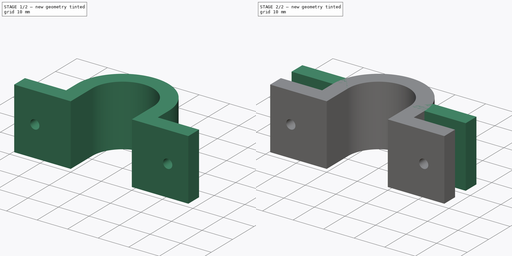
[diagram: build sequence overview — one tinted view per stage of 2, left to right]
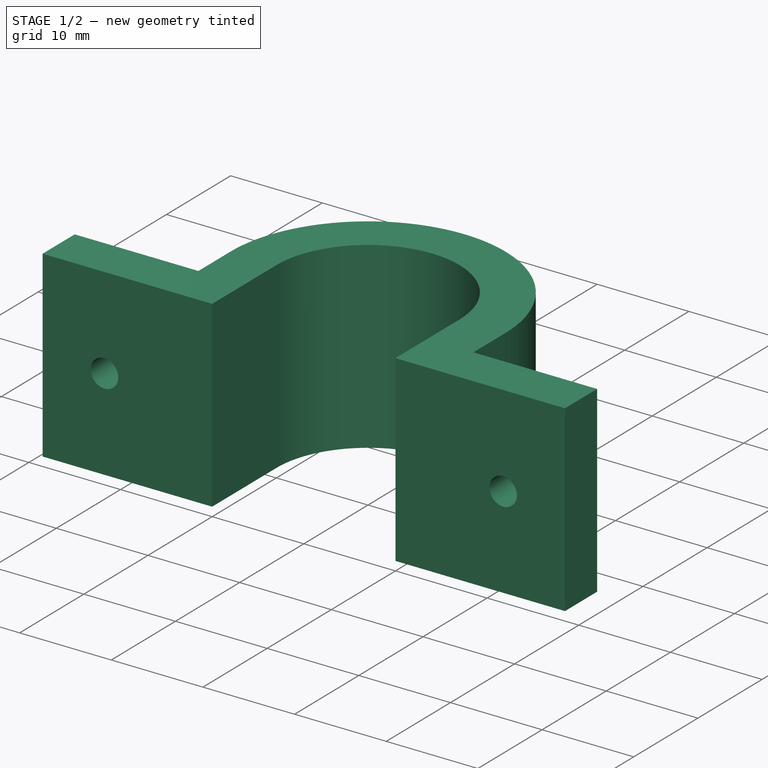
[diagram: stage 1 of 2 — iso view after this stage's code; geometry added in this stage tinted green]
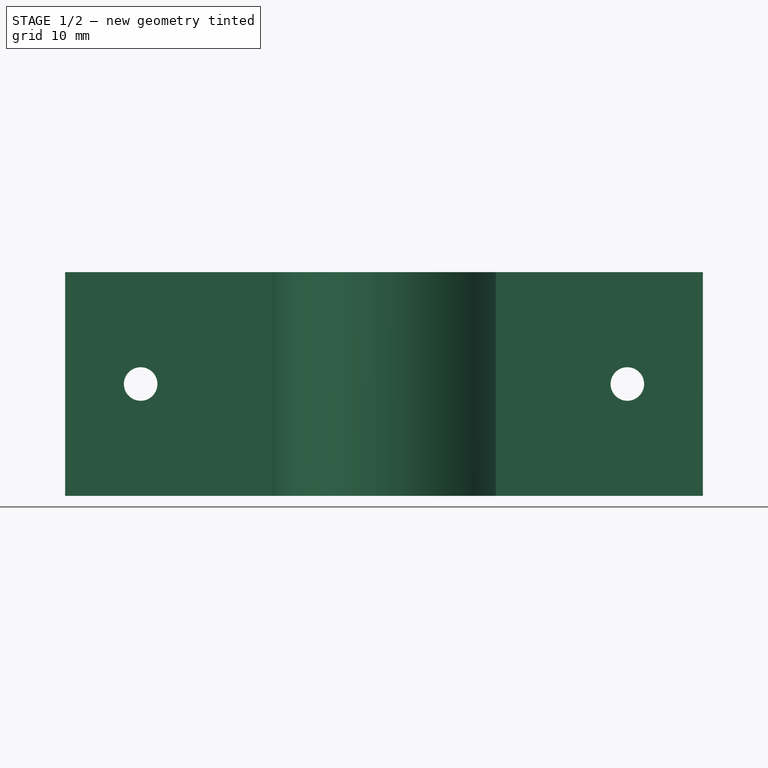
[diagram: stage 1 of 2 — front view after this stage's code; geometry added in this stage tinted green]
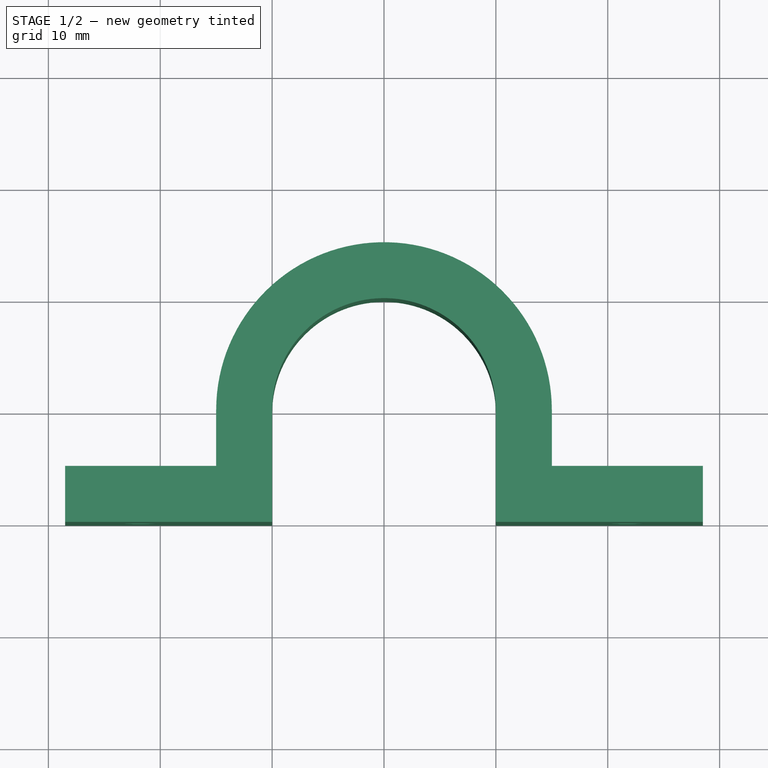
[diagram: stage 1 of 2 — top view after this stage's code; geometry added in this stage tinted green]
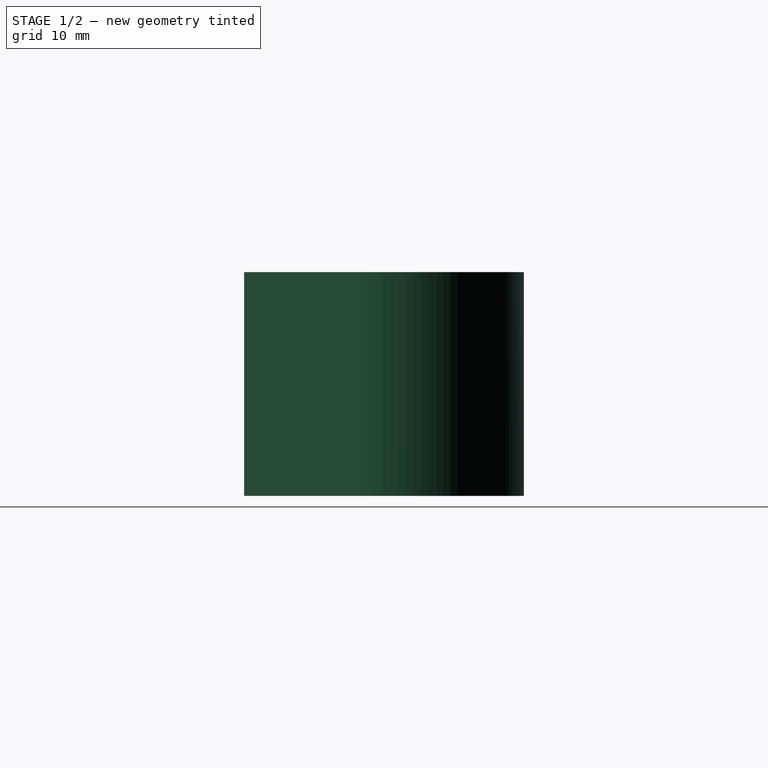
[diagram: stage 1 of 2 — right view after this stage's code; geometry added in this stage tinted green]
FCSTD DOCUMENT  (FreeCAD 2024.2R37179 (Git))
Label: 20mm
License: All rights reserved
LicenseURL: https://en.wikipedia.org/wiki/All_rights_reserved
objects: Sketcher::SketchObject×5, PartDesign::Pad×2, PartDesign::Pocket×2, PartDesign::Body×2
note: 15 computed .brp shape members not serialized (recipe doc carries the construction recipe); baked Part::Feature solids carry a one-line shape summary decoded from their .brp

FEATURE [PartDesign::Body] Body
  Group = -> [Sketch,Pad,Sketch001,Pocket]
  Origin = -> Origin
  Tip = -> Pocket
FEATURE [Sketcher::SketchObject] Sketch002
  AttachmentSupport = -> [XY_Plane001]
  FullyConstrained = false
  MapMode = 5
  sketch-geometry (13):
    g0: ArcOfCircle CenterX=0 CenterY=0 CenterZ=0 NormalX=0 NormalY=0 NormalZ=1 AngleXU=0 Radius=15 StartAngle=0 EndAngle=3.14159
    g1: GeomPoint X=0 Y=-10 Z=0
    g2: LineSegment StartX=-28.5 StartY=-10 StartZ=0 EndX=-10 EndY=-10 EndZ=0
    g3: LineSegment StartX=28.5 StartY=-10 StartZ=0 EndX=10 EndY=-10 EndZ=0
    g4: ArcOfCircle CenterX=0 CenterY=0 CenterZ=0 NormalX=0 NormalY=0 NormalZ=1 AngleXU=0 Radius=10 StartAngle=0 EndAngle=3.14159
    g5: LineSegment StartX=-10 StartY=0 StartZ=0 EndX=-10 EndY=-10 EndZ=0
    g6: LineSegment StartX=10 StartY=0 StartZ=0 EndX=10 EndY=-10 EndZ=0
    g7: LineSegment StartX=-28.5 StartY=-10 StartZ=0 EndX=-28.5 EndY=-5 EndZ=0
    g8: LineSegment StartX=-28.5 StartY=-5 StartZ=0 EndX=-15 EndY=-5 EndZ=0
    g9: LineSegment StartX=-15 StartY=-5 StartZ=0 EndX=-15 EndY=0 EndZ=0
    g10: LineSegment StartX=15 StartY=0 StartZ=0 EndX=15 EndY=-5 EndZ=0
    g11: LineSegment StartX=15 StartY=-5 StartZ=0 EndX=28.5 EndY=-5 EndZ=0
    g12: LineSegment StartX=28.5 StartY=-5 StartZ=0 EndX=28.5 EndY=-10 EndZ=0
  constraints (33):
    c: Diameter(g0) = 30
    c: DistanceX(g2,g3) = 57
    c: Horizontal(g2)
    c: Horizontal(g3)
    c: Coincident(g4,g0)
    c: PointOnObject(g4,g-1)
    c: PointOnObject(g4,g-1)
    c: Diameter(g4) = 20
    c: Tangent(g4,g5) = -1.5708
    c: Tangent(g4,g6) = 1.5708
    c: Coincident(g3,g6)
    c: Coincident(g2,g5)
    c: Coincident(g0,g-1)
    c: DistanceY(g3,g0) = 10
    c: Coincident(g2,g7)
    c: Vertical(g7)
    c: Coincident(g7,g8)
    c: Horizontal(g8)
    c: Coincident(g8,g9)
    c: Coincident(g9,g0)
    c: Vertical(g9)
    c: Tangent(g0,g10) = 1.5708
    c: Coincident(g10,g11)
    c: Horizontal(g11)
    c: Coincident(g11,g12)
    c: Coincident(g12,g3)
    c: Vertical(g12)
    c: Horizontal(g4,g0)
    c: Horizontal(g0,g4)
    c: DistanceY(g7,g7) = 5
    c: Equal(g7,g12)
    c: Equal(g8,g11)
    c: Horizontal(g2,g3)
FEATURE [PartDesign::Pad] Pad001
  Direction = (0,0,1)
  Length = 20
  Length2 = 10
  Profile = -> Sketch002
  ReferenceAxis = -> Sketch002 [N_Axis]
  Refine = true
  Suppressed = false
  Type = 0
FEATURE [Sketcher::SketchObject] Sketch003
  AttachmentSupport = -> [Pad001]
  ExternalGeometry = -> [Pad001]
  FullyConstrained = true
  MapMode = 5
  Placement = pos=(-28.5,0,0) rot=(0.57735,-0.57735,-0.57735;2.0944rad)
  sketch-geometry (2):
    g0: Circle CenterX=2.5 CenterY=10 CenterZ=0 NormalX=0 NormalY=0 NormalZ=1 AngleXU=0 Radius=1.5
    g1: Circle CenterX=7.5 CenterY=10 CenterZ=0 NormalX=0 NormalY=0 NormalZ=1 AngleXU=0 Radius=1.5
  constraints (4):
    c: Equal(g0,g1)
    c: Symmetric(g-3,g-4,g0)
    c: Symmetric(g-5,g-6,g1)
    c: Diameter(g1) = 3
FEATURE [Sketcher::SketchObject] Sketch004
  AttachmentSupport = -> [Pad001]
  ExternalGeometry = -> [Pad001]
  FullyConstrained = true
  MapMode = 5
  Placement = pos=(0,-5,0) rot=(0,0.707107,0.707107;3.14159rad)
  sketch-geometry (2):
    g0: Circle CenterX=-21.75 CenterY=10 CenterZ=0 NormalX=0 NormalY=0 NormalZ=1 AngleXU=0 Radius=1.5
    g1: Circle CenterX=21.75 CenterY=10 CenterZ=0 NormalX=0 NormalY=0 NormalZ=1 AngleXU=0 Radius=1.5
  constraints (4):
    c: Equal(g0,g1)
    c: Symmetric(g-3,g-4,g0)
    c: Symmetric(g-5,g-6,g1)
    c: Diameter(g0) = 3
FEATURE [PartDesign::Pocket] Pocket001
  BaseFeature = -> Pad001
  Direction = (0,-1,2e-16)
  Length = 5
  Length2 = 5
  Profile = -> Sketch004
  ReferenceAxis = -> Sketch004 [N_Axis]
  Refine = true
  Suppressed = false
  Type = 1
FEATURE [PartDesign::Body] Body001
  Group = -> [Sketch002,Pad001,Sketch003,Sketch004,Pocket001]
  Origin = -> Origin001
  Tip = -> Pocket001
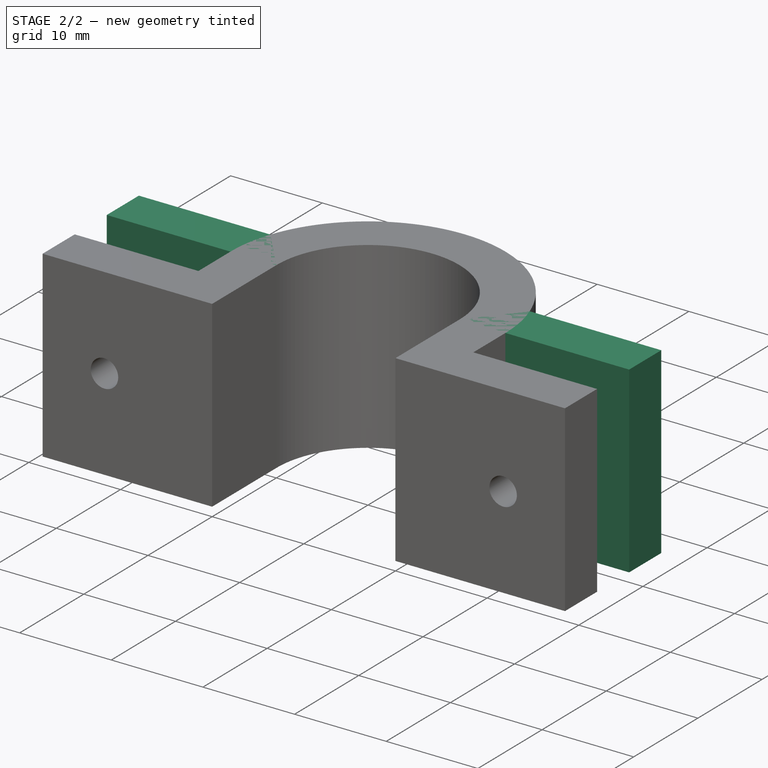
[diagram: stage 2 of 2 — iso view after this stage's code; geometry added in this stage tinted green]
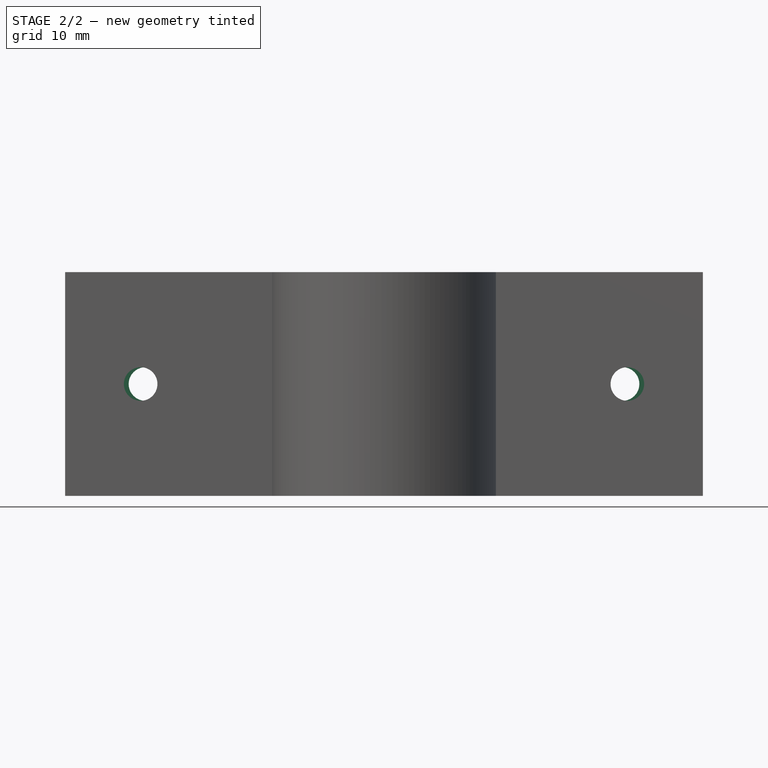
[diagram: stage 2 of 2 — front view after this stage's code; geometry added in this stage tinted green]
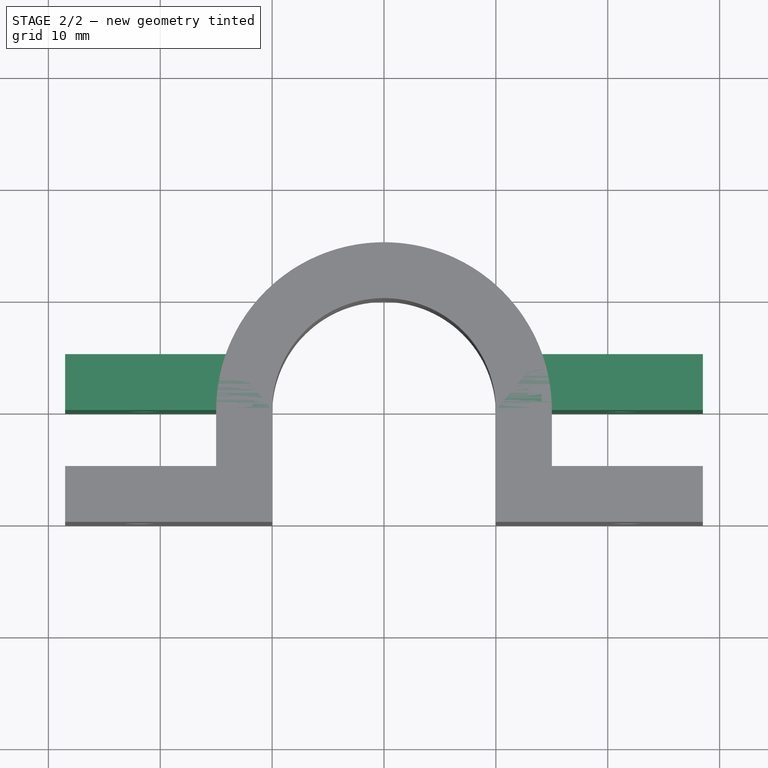
[diagram: stage 2 of 2 — top view after this stage's code; geometry added in this stage tinted green]
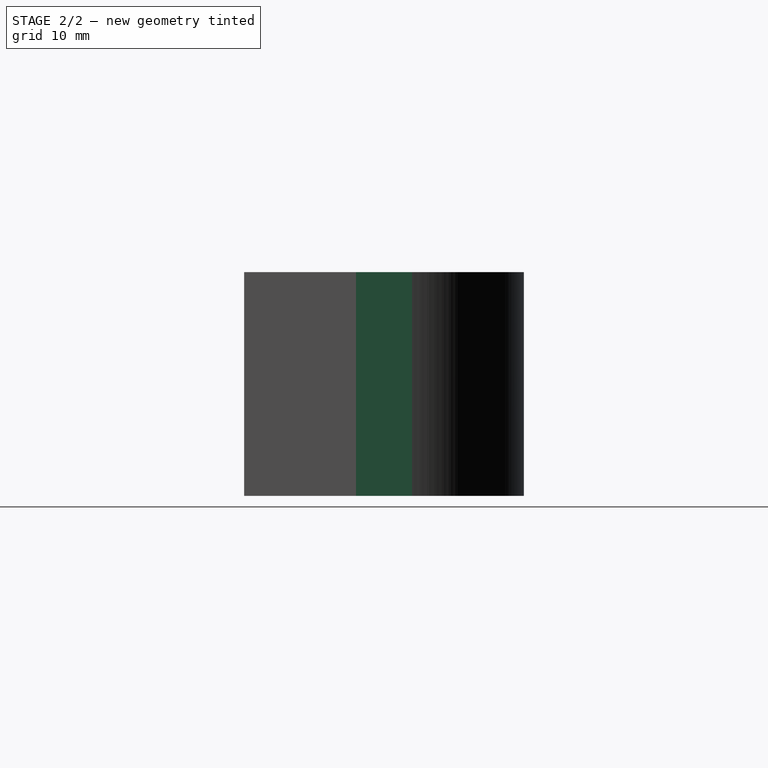
[diagram: stage 2 of 2 — right view after this stage's code; geometry added in this stage tinted green]
FEATURE [Sketcher::SketchObject] Sketch
  AttachmentSupport = -> [XY_Plane]
  FullyConstrained = true
  MapMode = 5
  sketch-geometry (8):
    g0: LineSegment StartX=28.5 StartY=1.9e-15 StartZ=0 EndX=10 EndY=1.9e-15 EndZ=0
    g1: LineSegment StartX=-28.5 StartY=1.2e-15 StartZ=0 EndX=-10 EndY=1.2e-15 EndZ=0
    g2: ArcOfCircle CenterX=0 CenterY=1.2e-15 CenterZ=0 NormalX=0 NormalY=0 NormalZ=1 AngleXU=0 Radius=10 StartAngle=1e-16 EndAngle=3.14159
    g3: LineSegment StartX=-28.5 StartY=1.2e-15 StartZ=0 EndX=-28.5 EndY=5 EndZ=0
    g4: LineSegment StartX=-28.5 StartY=5 StartZ=0 EndX=-14.1421 EndY=5 EndZ=0
    g5: LineSegment StartX=28.5 StartY=1.9e-15 StartZ=0 EndX=28.5 EndY=5 EndZ=0
    g6: LineSegment StartX=28.5 StartY=5 StartZ=0 EndX=14.1421 EndY=5 EndZ=0
    g7: ArcOfCircle CenterX=0 CenterY=1.2e-15 CenterZ=0 NormalX=0 NormalY=0 NormalZ=1 AngleXU=0 Radius=15 StartAngle=0.339837 EndAngle=2.80176
  constraints (24):
    c: Horizontal(g0)
    c: Horizontal(g1)
    c: Coincident(g2,g1)
    c: Coincident(g2,g0)
    c: Diameter(g2) = 20
    c: Equal(g1,g0)
    c: Horizontal(g1,g2)
    c: Coincident(g1,g3)
    c: Coincident(g3,g4)
    c: Horizontal(g4)
    c: Coincident(g0,g5)
    c: Coincident(g5,g6)
    c: Equal(g6,g4)
    c: Equal(g3,g5)
    c: Vertical(g5)
    c: Vertical(g3)
    c: Horizontal(g6)
    c: Coincident(g2,g-1)
    c: Coincident(g7,g4)
    c: Coincident(g7,g6)
    c: Coincident(g7,g2)
    c: Diameter(g7) = 30
    c: DistanceY(g5,g5) = 5
    c: DistanceX(g1,g0) = 57
FEATURE [PartDesign::Pad] Pad
  Direction = (0,0,1)
  Length = 20
  Length2 = 10
  Profile = -> Sketch
  ReferenceAxis = -> Sketch [N_Axis]
  Refine = true
  Suppressed = false
  Type = 0
FEATURE [Sketcher::SketchObject] Sketch001
  AttachmentSupport = -> [Pad]
  ExternalGeometry = -> [Pad]
  FullyConstrained = true
  MapMode = 5
  Placement = pos=(0,5,0) rot=(0,0.707107,0.707107;3.14159rad)
  sketch-geometry (2):
    g0: Circle CenterX=-21.3211 CenterY=10 CenterZ=0 NormalX=0 NormalY=0 NormalZ=1 AngleXU=0 Radius=1.5
    g1: Circle CenterX=21.3211 CenterY=10 CenterZ=0 NormalX=0 NormalY=0 NormalZ=1 AngleXU=0 Radius=1.5
  constraints (4):
    c: Equal(g0,g1)
    c: Diameter(g1) = 3
    c: Symmetric(g-3,g-4,g0)
    c: Symmetric(g-6,g-5,g1)
FEATURE [PartDesign::Pocket] Pocket
  BaseFeature = -> Pad
  Direction = (0,-1,2e-16)
  Length = 5
  Length2 = 5
  Profile = -> Sketch001
  ReferenceAxis = -> Sketch001 [N_Axis]
  Refine = true
  Suppressed = false
  Type = 1
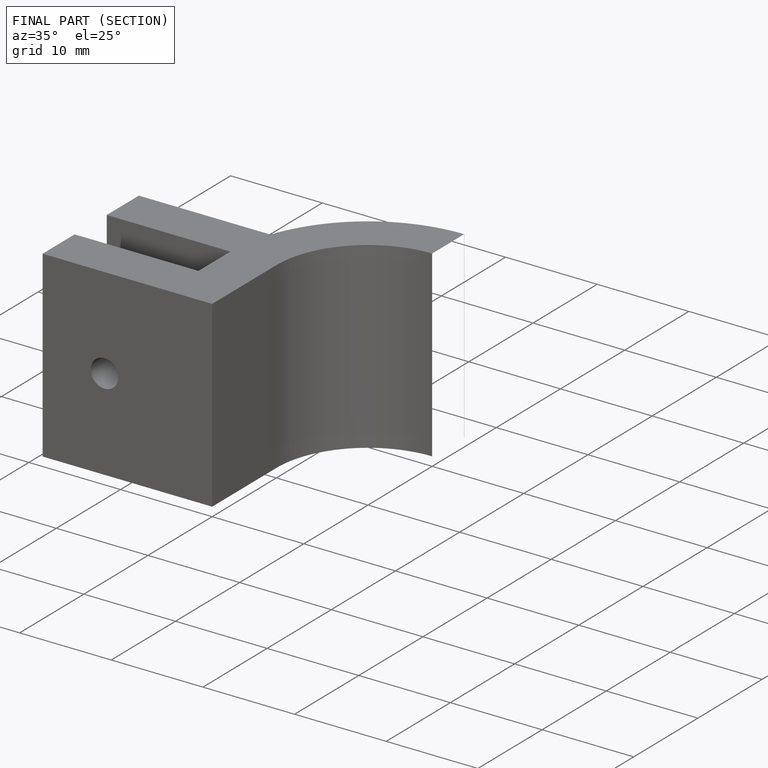
[diagram: finished part — half-section view (interior)]
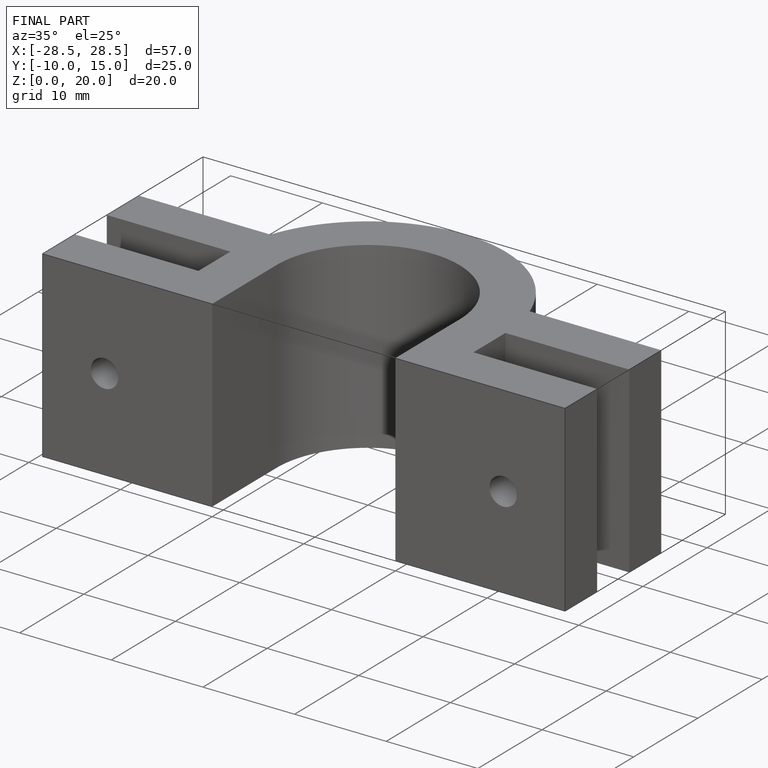
[diagram: finished part — iso view with bounding-box wireframe]
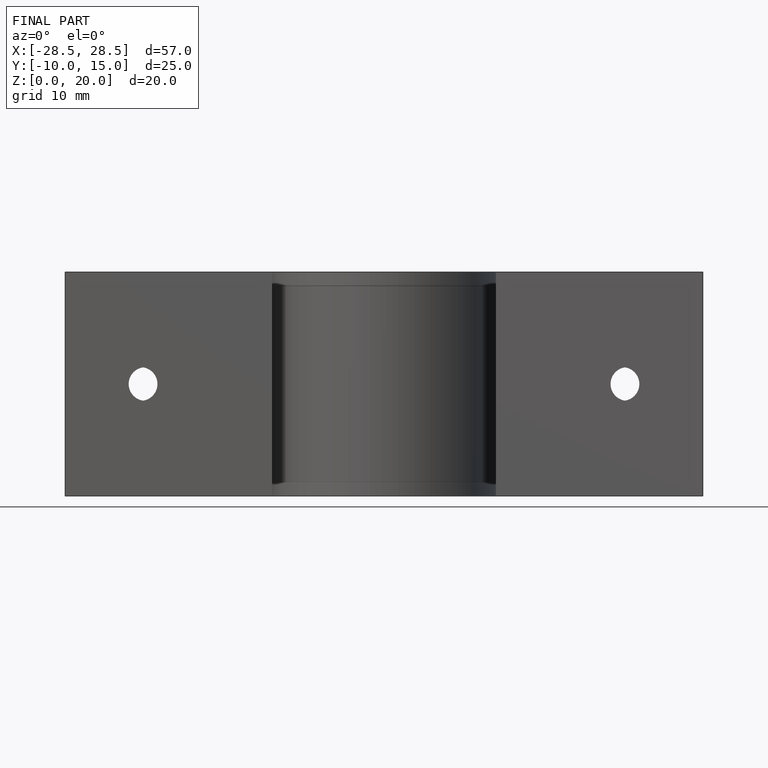
[diagram: finished part — front view with bounding-box wireframe]
